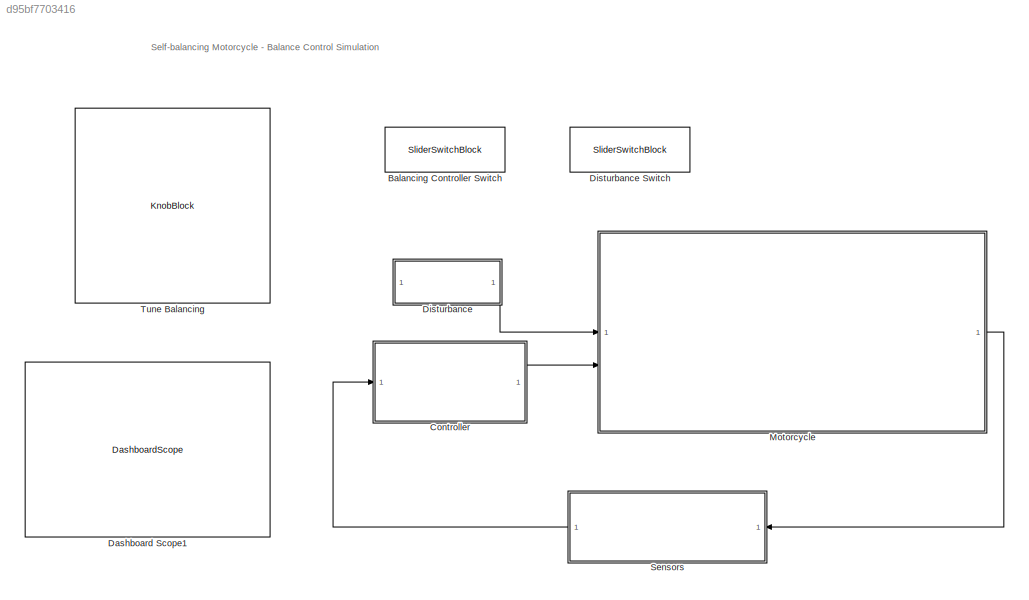
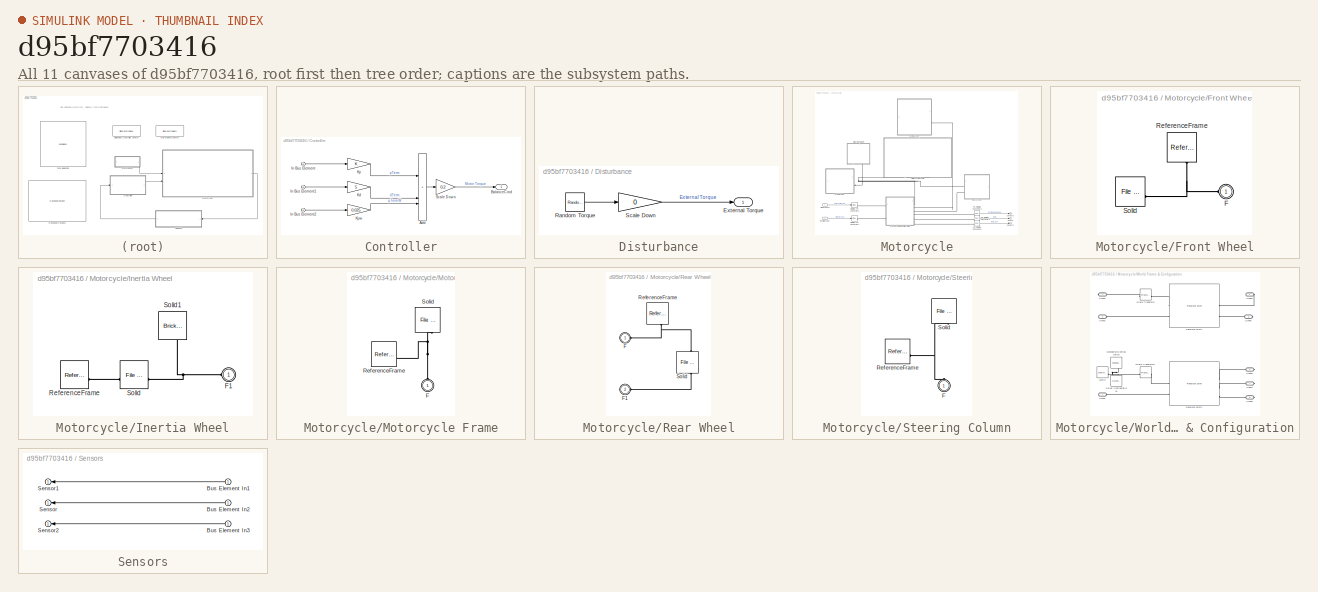
[diagram: thumbnail index - all 11 canvases of the model, root first then tree order]
MODEL slx_d95bf7703416
KIND model
CONFIG AbsTol = auto
CONFIG EnableMultiTasking = on
CONFIG FixedStep = auto
CONFIG MaxStep = auto
CONFIG MinStep = auto
CONFIG PreLoadFcn = moto_cad_data\n\ntheta0 = 5;\nthetadot0 = 0;
CONFIG RelTol = 1e-3
CONFIG SampleTimeConstraint = Unconstrained
CONFIG SolverName = ode45
CONFIG StartTime = 0.0
CONFIG StopTime = 10
BLOCK [SliderSwitchBlock] Balancing Controller Switch
  LabelPosition = Hide
BLOCK [SubSystem] Controller
BLOCK [Sum] Controller/Add
  IconShape = rectangular
  Inputs = 3
BLOCK [Outport] Controller/BalanceCmd
  VectorParamsAs1DForOutWhenUnconnected = off
BLOCK [Inport] Controller/In Bus Element
BLOCK [Inport] Controller/In Bus Element1
BLOCK [Inport] Controller/In Bus Element2
BLOCK [Gain] Controller/Kd
  Gain = 5
BLOCK [Gain] Controller/Kp
BLOCK [Gain] Controller/Kpw
  Gain = 0.025
BLOCK [Gain] Controller/Scale Down
  Gain = 0.2
BLOCK [DashboardScope] Dashboard Scope1
BLOCK [SubSystem] Disturbance
BLOCK [SliderSwitchBlock] Disturbance Switch
  LabelPosition = Hide
BLOCK [Outport] Disturbance/External Torque
  VectorParamsAs1DForOutWhenUnconnected = off
BLOCK [RandomNumber] Disturbance/Random Torque
  SampleTime = 0.1
BLOCK [Gain] Disturbance/Scale Down
  Gain = 0
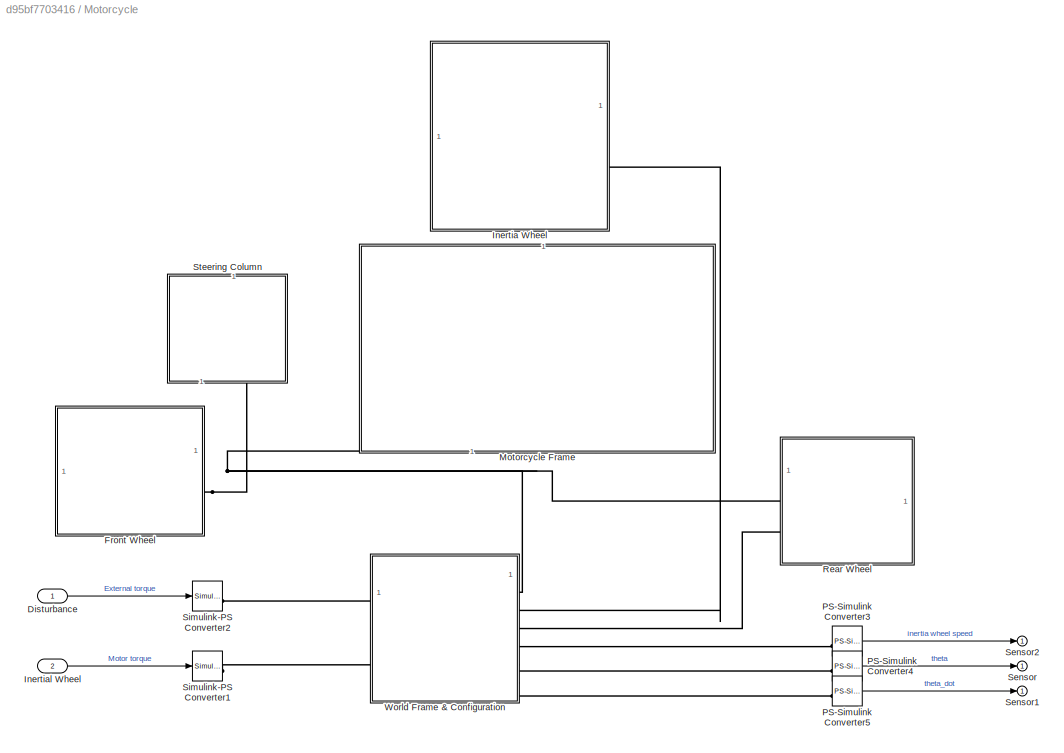
BLOCK [SubSystem] Motorcycle
BLOCK [Inport] Motorcycle/Disturbance
BLOCK [SubSystem] Motorcycle/Front Wheel
BLOCK [PMIOPort] Motorcycle/Front Wheel/F
  Side = Left
BLOCK [Reference] Motorcycle/Front Wheel/ReferenceFrame  REF=sm_lib/Frames and
Transforms/Reference
Frame
  NameLocation = left
  SourceBlock = sm_lib/Frames and\nTransforms/Reference\nFrame
  SourceType = Reference\nFrame
BLOCK [Reference] Motorcycle/Front Wheel/Solid  REF=sm_lib/Body Elements/File Solid
  SourceBlock = sm_lib/Body Elements/File Solid
  SourceType = File Solid
BLOCK [SubSystem] Motorcycle/Inertia Wheel
  NameLocation = top
BLOCK [PMIOPort] Motorcycle/Inertia Wheel/F1
  NameLocation = top
  Side = Left
BLOCK [Reference] Motorcycle/Inertia Wheel/ReferenceFrame  REF=sm_lib/Frames and
Transforms/Reference
Frame
  NameLocation = top
  SourceBlock = sm_lib/Frames and\nTransforms/Reference\nFrame
  SourceType = Reference\nFrame
BLOCK [Reference] Motorcycle/Inertia Wheel/Solid  REF=sm_lib/Body Elements/File Solid
  SourceBlock = sm_lib/Body Elements/File Solid
  SourceType = File Solid
BLOCK [Reference] Motorcycle/Inertia Wheel/Solid1  REF=sm_lib/Body Elements/Brick Solid
  NameLocation = right
  SourceBlock = sm_lib/Body Elements/Brick Solid
  SourceType = Brick Solid
BLOCK [Inport] Motorcycle/Inertial Wheel
  Port = 2
BLOCK [SubSystem] Motorcycle/Motorcycle Frame
  NameLocation = left
BLOCK [PMIOPort] Motorcycle/Motorcycle Frame/F
  NameLocation = left
  Side = Left
BLOCK [Reference] Motorcycle/Motorcycle Frame/ReferenceFrame  REF=sm_lib/Frames and
Transforms/Reference
Frame
  SourceBlock = sm_lib/Frames and\nTransforms/Reference\nFrame
  SourceType = Reference\nFrame
BLOCK [Reference] Motorcycle/Motorcycle Frame/Solid  REF=sm_lib/Body Elements/File Solid
  NameLocation = left
  SourceBlock = sm_lib/Body Elements/File Solid
  SourceType = File Solid
BLOCK [Reference] Motorcycle/PS-Simulink Converter3  REF=nesl_utility/PS-Simulink
Converter
  NameLocation = top
  SourceBlock = nesl_utility/PS-Simulink\nConverter
  SourceType = PS-Simulink\nConverter
BLOCK [Reference] Motorcycle/PS-Simulink Converter4  REF=nesl_utility/PS-Simulink
Converter
  NameLocation = top
  SourceBlock = nesl_utility/PS-Simulink\nConverter
  SourceType = PS-Simulink\nConverter
BLOCK [Reference] Motorcycle/PS-Simulink Converter5  REF=nesl_utility/PS-Simulink
Converter
  SourceBlock = nesl_utility/PS-Simulink\nConverter
  SourceType = PS-Simulink\nConverter
BLOCK [SubSystem] Motorcycle/Rear Wheel
BLOCK [PMIOPort] Motorcycle/Rear Wheel/F
  Side = Left
BLOCK [PMIOPort] Motorcycle/Rear Wheel/F1
  NameLocation = top
  Port = 2
  Side = Left
BLOCK [Reference] Motorcycle/Rear Wheel/ReferenceFrame  REF=sm_lib/Frames and
Transforms/Reference
Frame
  NameLocation = right
  SourceBlock = sm_lib/Frames and\nTransforms/Reference\nFrame
  SourceType = Reference\nFrame
BLOCK [Reference] Motorcycle/Rear Wheel/Solid  REF=sm_lib/Body Elements/File Solid
  NameLocation = right
  SourceBlock = sm_lib/Body Elements/File Solid
  SourceType = File Solid
BLOCK [Outport] Motorcycle/Sensor
  VectorParamsAs1DForOutWhenUnconnected = off
BLOCK [Outport] Motorcycle/Sensor1
  VectorParamsAs1DForOutWhenUnconnected = off
BLOCK [Outport] Motorcycle/Sensor2
  VectorParamsAs1DForOutWhenUnconnected = off
BLOCK [Reference] Motorcycle/Simulink-PS Converter1  REF=nesl_utility/Simulink-PS
Converter
  NameLocation = top
  SourceBlock = nesl_utility/Simulink-PS\nConverter
  SourceType = Simulink-PS\nConverter
BLOCK [Reference] Motorcycle/Simulink-PS Converter2  REF=nesl_utility/Simulink-PS
Converter
  SourceBlock = nesl_utility/Simulink-PS\nConverter
  SourceType = Simulink-PS\nConverter
BLOCK [SubSystem] Motorcycle/Steering Column
  NameLocation = left
BLOCK [PMIOPort] Motorcycle/Steering Column/F
  NameLocation = left
  Side = Left
BLOCK [Reference] Motorcycle/Steering Column/ReferenceFrame  REF=sm_lib/Frames and
Transforms/Reference
Frame
  SourceBlock = sm_lib/Frames and\nTransforms/Reference\nFrame
  SourceType = Reference\nFrame
BLOCK [Reference] Motorcycle/Steering Column/Solid  REF=sm_lib/Body Elements/File Solid
  NameLocation = left
  SourceBlock = sm_lib/Body Elements/File Solid
  SourceType = File Solid
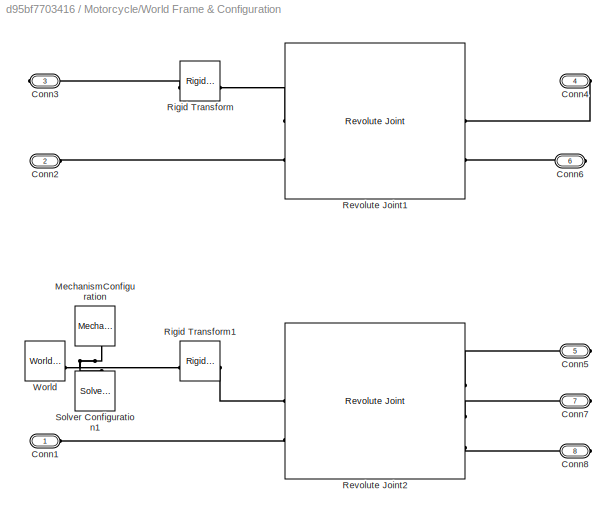
BLOCK [SubSystem] Motorcycle/World Frame & Configuration
BLOCK [PMIOPort] Motorcycle/World Frame & Configuration/Conn1
  Side = Left
BLOCK [PMIOPort] Motorcycle/World Frame & Configuration/Conn2
  Port = 2
  Side = Left
BLOCK [PMIOPort] Motorcycle/World Frame & Configuration/Conn3
  Port = 3
  Side = Right
BLOCK [PMIOPort] Motorcycle/World Frame & Configuration/Conn4
  Port = 4
  Side = Right
BLOCK [PMIOPort] Motorcycle/World Frame & Configuration/Conn5
  Port = 5
  Side = Right
BLOCK [PMIOPort] Motorcycle/World Frame & Configuration/Conn6
  Port = 6
  Side = Right
BLOCK [PMIOPort] Motorcycle/World Frame & Configuration/Conn7
  Port = 7
  Side = Right
BLOCK [PMIOPort] Motorcycle/World Frame & Configuration/Conn8
  Port = 8
  Side = Right
BLOCK [Reference] Motorcycle/World Frame & Configuration/MechanismConfiguration  REF=sm_lib/Utilities/Mechanism
Configuration
  NameLocation = left
  SourceBlock = sm_lib/Utilities/Mechanism\nConfiguration
  SourceType = Mechanism\nConfiguration
BLOCK [Reference] Motorcycle/World Frame & Configuration/Revolute Joint1  REF=sm_lib/Joints/Revolute Joint
  SourceBlock = sm_lib/Joints/Revolute Joint
  SourceType = Revolute Joint
BLOCK [Reference] Motorcycle/World Frame & Configuration/Revolute Joint2  REF=sm_lib/Joints/Revolute Joint
  SourceBlock = sm_lib/Joints/Revolute Joint
  SourceType = Revolute Joint
BLOCK [Reference] Motorcycle/World Frame & Configuration/Rigid Transform  REF=sm_lib/Frames and
Transforms/Rigid
Transform
  SourceBlock = sm_lib/Frames and\nTransforms/Rigid\nTransform
  SourceType = Rigid\nTransform
BLOCK [Reference] Motorcycle/World Frame & Configuration/Rigid Transform1  REF=sm_lib/Frames and
Transforms/Rigid
Transform
  SourceBlock = sm_lib/Frames and\nTransforms/Rigid\nTransform
  SourceType = Rigid\nTransform
BLOCK [Reference] Motorcycle/World Frame & Configuration/Solver Configuration1  REF=nesl_utility/Solver
Configuration
  NameLocation = right
  SourceBlock = nesl_utility/Solver\nConfiguration
  SourceType = Solver\nConfiguration
BLOCK [Reference] Motorcycle/World Frame & Configuration/World  REF=sm_lib/Frames and
Transforms/World Frame
  SourceBlock = sm_lib/Frames and\nTransforms/World Frame
  SourceType = World Frame
BLOCK [SubSystem] Sensors
  ShowPortLabels = none
BLOCK [Inport] Sensors/Bus Element In1
BLOCK [Inport] Sensors/Bus Element In2
BLOCK [Inport] Sensors/Bus Element In3
BLOCK [Outport] Sensors/Sensor
  VectorParamsAs1DForOutWhenUnconnected = off
BLOCK [Outport] Sensors/Sensor1
  VectorParamsAs1DForOutWhenUnconnected = off
BLOCK [Outport] Sensors/Sensor2
  VectorParamsAs1DForOutWhenUnconnected = off
BLOCK [KnobBlock] Tune Balancing
  LabelPosition = Hide
  ScaleMax = 50
  ScaleMin = 1
ANNOTATION (root): Self-balancing Motorcycle - Balance Control Simulation
LINE Controller/Add:1 -> Controller/Scale Down:1
LINE Controller/In Bus Element1:1 -> Controller/Kd:1
LINE Controller/In Bus Element2:1 -> Controller/Kpw:1
LINE Controller/In Bus Element:1 -> Controller/Kp:1
LINE Controller/Kd:1 -> Controller/Add:2
LINE Controller/Kp:1 -> Controller/Add:1
LINE Controller/Kpw:1 -> Controller/Add:3
LINE Controller/Scale Down:1 -> Controller/BalanceCmd:1
LINE Controller:1 -> Motorcycle:2
LINE Disturbance/Random Torque:1 -> Disturbance/Scale Down:1
LINE Disturbance/Scale Down:1 -> Disturbance/External Torque:1
LINE Disturbance:1 -> Motorcycle:1
LINE Motorcycle/Disturbance:1 -> Motorcycle/Simulink-PS Converter2:1
LINE Motorcycle/Inertial Wheel:1 -> Motorcycle/Simulink-PS Converter1:1
LINE Motorcycle/PS-Simulink Converter3:1 -> Motorcycle/Sensor2:1
LINE Motorcycle/PS-Simulink Converter4:1 -> Motorcycle/Sensor:1
LINE Motorcycle/PS-Simulink Converter5:1 -> Motorcycle/Sensor1:1
LINE Motorcycle:1 -> Sensors:1
LINE Sensors/Bus Element In1:1 -> Sensors/Sensor1:1
LINE Sensors/Bus Element In2:1 -> Sensors/Sensor:1
LINE Sensors/Bus Element In3:1 -> Sensors/Sensor2:1
LINE Sensors:1 -> Controller:1
PNET net1: Motorcycle/Front Wheel/F:RConn1 -- Motorcycle/Front Wheel/ReferenceFrame:RConn1 -- Motorcycle/Front Wheel/Solid:RConn1
PNET net2: Motorcycle/Front Wheel:LConn1 -- Motorcycle/Motorcycle Frame:LConn1 -- Motorcycle/Rear Wheel:LConn1 -- Motorcycle/Steering Column:LConn1 -- Motorcycle/World Frame & Configuration:RConn1
PNET net3: Motorcycle/Inertia Wheel/F1:RConn1 -- Motorcycle/Inertia Wheel/Solid1:RConn1 -- Motorcycle/Inertia Wheel/Solid:LConn1
PLINE Motorcycle/Inertia Wheel/ReferenceFrame:RConn1 -- Motorcycle/Inertia Wheel/Solid:RConn1
PLINE Motorcycle/Inertia Wheel:LConn1 -- Motorcycle/World Frame & Configuration:RConn2
PNET net4: Motorcycle/Motorcycle Frame/F:RConn1 -- Motorcycle/Motorcycle Frame/ReferenceFrame:RConn1 -- Motorcycle/Motorcycle Frame/Solid:RConn1
PLINE Motorcycle/PS-Simulink Converter3:LConn1 -- Motorcycle/World Frame & Configuration:RConn4
PLINE Motorcycle/PS-Simulink Converter4:LConn1 -- Motorcycle/World Frame & Configuration:RConn5
PLINE Motorcycle/PS-Simulink Converter5:LConn1 -- Motorcycle/World Frame & Configuration:RConn6
PLINE Motorcycle/Rear Wheel/F1:RConn1 -- Motorcycle/Rear Wheel/Solid:LConn1
PNET net5: Motorcycle/Rear Wheel/F:RConn1 -- Motorcycle/Rear Wheel/ReferenceFrame:RConn1 -- Motorcycle/Rear Wheel/Solid:RConn1
PLINE Motorcycle/Rear Wheel:LConn2 -- Motorcycle/World Frame & Configuration:RConn3
PLINE Motorcycle/Simulink-PS Converter1:RConn1 -- Motorcycle/World Frame & Configuration:LConn2
PLINE Motorcycle/Simulink-PS Converter2:RConn1 -- Motorcycle/World Frame & Configuration:LConn1
PNET net6: Motorcycle/Steering Column/F:RConn1 -- Motorcycle/Steering Column/ReferenceFrame:RConn1 -- Motorcycle/Steering Column/Solid:RConn1
PLINE Motorcycle/World Frame & Configuration/Conn1:RConn1 -- Motorcycle/World Frame & Configuration/Revolute Joint2:LConn2
PLINE Motorcycle/World Frame & Configuration/Conn2:RConn1 -- Motorcycle/World Frame & Configuration/Revolute Joint1:LConn2
PLINE Motorcycle/World Frame & Configuration/Conn3:RConn1 -- Motorcycle/World Frame & Configuration/Rigid Transform:LConn1
PLINE Motorcycle/World Frame & Configuration/Conn4:RConn1 -- Motorcycle/World Frame & Configuration/Revolute Joint1:RConn1
PLINE Motorcycle/World Frame & Configuration/Conn5:RConn1 -- Motorcycle/World Frame & Configuration/Revolute Joint2:RConn1
PLINE Motorcycle/World Frame & Configuration/Conn6:RConn1 -- Motorcycle/World Frame & Configuration/Revolute Joint1:RConn2
PLINE Motorcycle/World Frame & Configuration/Conn7:RConn1 -- Motorcycle/World Frame & Configuration/Revolute Joint2:RConn2
PLINE Motorcycle/World Frame & Configuration/Conn8:RConn1 -- Motorcycle/World Frame & Configuration/Revolute Joint2:RConn3
PNET net7: Motorcycle/World Frame & Configuration/MechanismConfiguration:RConn1 -- Motorcycle/World Frame & Configuration/Rigid Transform1:LConn1 -- Motorcycle/World Frame & Configuration/Solver Configuration1:RConn1 -- Motorcycle/World Frame & Configuration/World:RConn1
PLINE Motorcycle/World Frame & Configuration/Revolute Joint1:LConn1 -- Motorcycle/World Frame & Configuration/Rigid Transform:RConn1
PLINE Motorcycle/World Frame & Configuration/Revolute Joint2:LConn1 -- Motorcycle/World Frame & Configuration/Rigid Transform1:RConn1
note: PNET lines group multi-terminal physical nets as a canonical sorted terminal list (undirected conserving connections); 2-terminal nets keep the pairwise PLINE form
